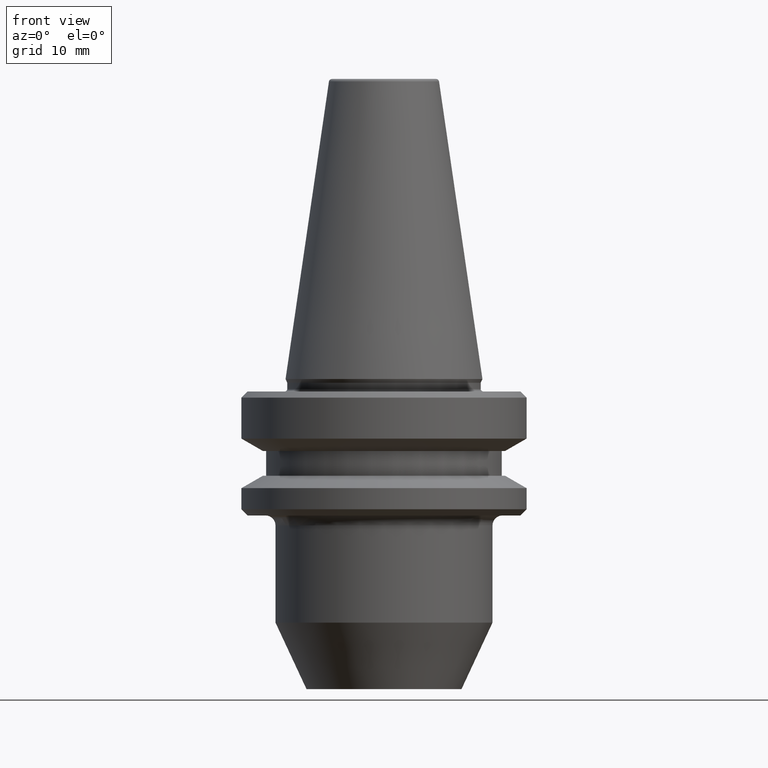
[diagram: clean part render]
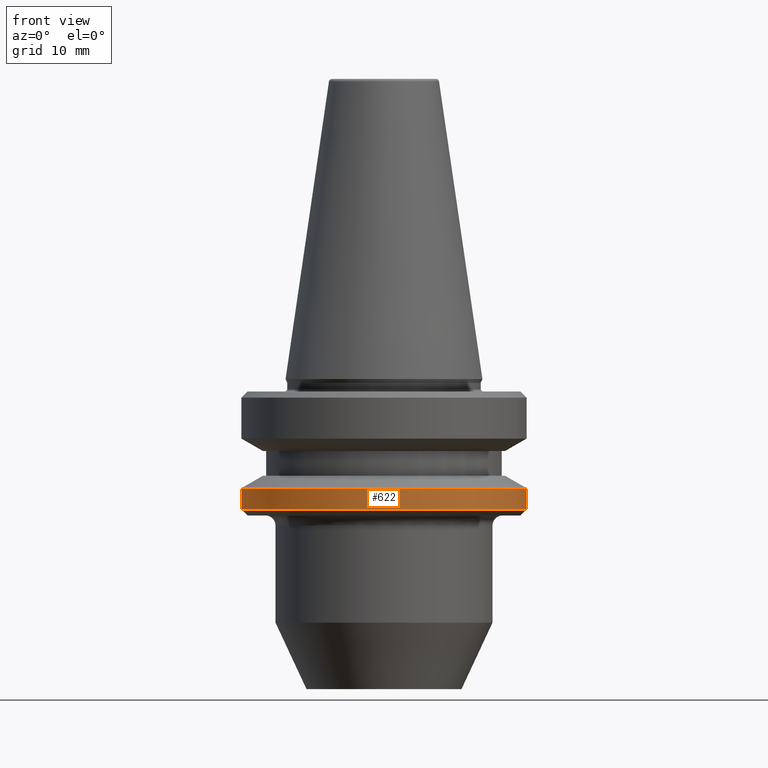
[diagram: same view with one face highlighted and labeled with its STEP entity id]
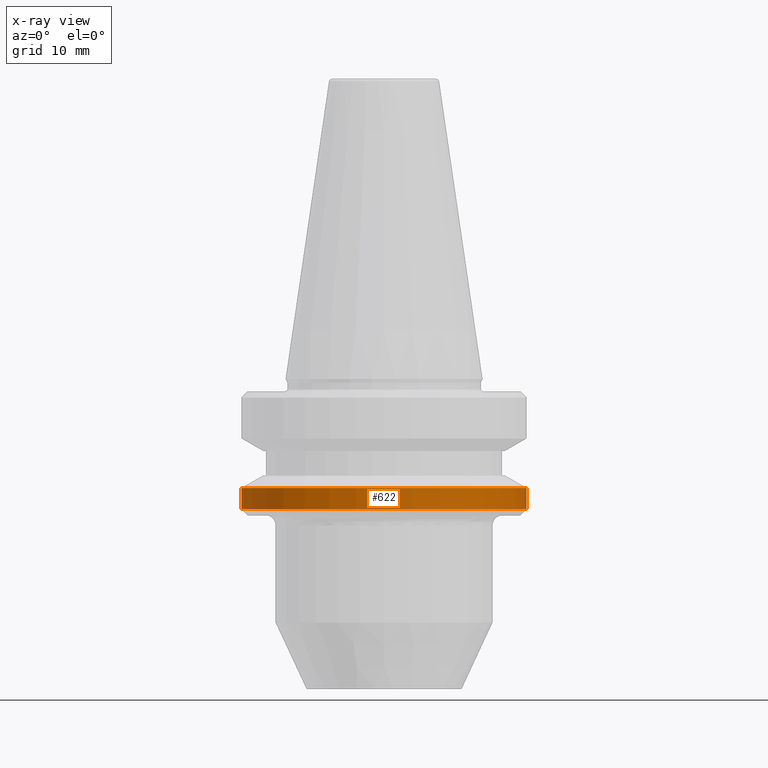
[diagram: x-ray of the same camera — body ghosted, the highlighted face saturated]
A machine part, front view. The second image highlights one B-rep face of the part: STEP entity #622.
The next image is the same camera in x-ray: the body ghosted, the highlighted face saturated — about 0% of this face is hidden behind the body in this view.
In plain terms, the highlighted cylindrical surface (partial cylindrical patch) has radius 23 mm, axis along (-0, -0, 1).
Its self-contained STEP definition (entity closure, byte-faithful):
#41 = CARTESIAN_POINT ( 'NONE',  ( -23.00000000000002100, 2.816687638038915100E-015, -17.59988266494549700 ) ) ;
#105 = CIRCLE ( 'NONE', #310, 23.00000000000002100 ) ;
#164 = DIRECTION ( 'NONE',  ( -0.0000000000000000000, -0.0000000000000000000, 1.000000000000000000 ) ) ;
#210 = ORIENTED_EDGE ( 'NONE', *, *, #859, .T. ) ;
#211 = ORIENTED_EDGE ( 'NONE', *, *, #365, .F. ) ;
#244 = LINE ( 'NONE', #512, #628 ) ;
#255 = CARTESIAN_POINT ( 'NONE',  ( 0.0000000000000000000, 0.0000000000000000000, 106.7296997704041000 ) ) ;
#272 = CIRCLE ( 'NONE', #915, 23.00000000000002100 ) ;
#281 = DIRECTION ( 'NONE',  ( -0.0000000000000000000, -0.0000000000000000000, 1.000000000000000000 ) ) ;
#287 = AXIS2_PLACEMENT_3D ( 'NONE', #255, #994, #438 ) ;
#289 = CARTESIAN_POINT ( 'NONE',  ( 23.00000000000002100, 0.0000000000000000000, 106.7296997704041000 ) ) ;
#296 = CARTESIAN_POINT ( 'NONE',  ( -23.00000000000002100, 2.816687638038915100E-015, -20.99999999999989300 ) ) ;
#309 = VERTEX_POINT ( 'NONE', #41 ) ;
#310 = AXIS2_PLACEMENT_3D ( 'NONE', #1001, #281, #456 ) ;
#337 = CARTESIAN_POINT ( 'NONE',  ( 0.0000000000000000000, 0.0000000000000000000, -20.99999999999989300 ) ) ;
#365 = EDGE_CURVE ( 'NONE', #902, #309, #244, .T. ) ;
#370 = CARTESIAN_POINT ( 'NONE',  ( 23.00000000000002100, 0.0000000000000000000, -17.59988266494549700 ) ) ;
#391 = FACE_OUTER_BOUND ( 'NONE', #850, .T. ) ;
#426 = VERTEX_POINT ( 'NONE', #370 ) ;
#430 = ORIENTED_EDGE ( 'NONE', *, *, #547, .F. ) ;
#438 = DIRECTION ( 'NONE',  ( 1.000000000000000000, 0.0000000000000000000, 0.0000000000000000000 ) ) ;
#451 = DIRECTION ( 'NONE',  ( -0.0000000000000000000, -0.0000000000000000000, 1.000000000000000000 ) ) ;
#456 = DIRECTION ( 'NONE',  ( 1.000000000000000000, 0.0000000000000000000, 0.0000000000000000000 ) ) ;
#512 = CARTESIAN_POINT ( 'NONE',  ( -23.00000000000002100, 2.816687638038915100E-015, 106.7296997704041000 ) ) ;
#547 = EDGE_CURVE ( 'NONE', #309, #426, #105, .T. ) ;
#574 = CARTESIAN_POINT ( 'NONE',  ( 23.00000000000002100, 0.0000000000000000000, -20.99999999999989300 ) ) ;
#604 = ORIENTED_EDGE ( 'NONE', *, *, #997, .T. ) ;
#622 = ADVANCED_FACE ( 'NONE', ( #391 ), #780, .T. ) ;
#628 = VECTOR ( 'NONE', #673, 1000.000000000000000 ) ;
#673 = DIRECTION ( 'NONE',  ( -0.0000000000000000000, -0.0000000000000000000, 1.000000000000000000 ) ) ;
#780 = CYLINDRICAL_SURFACE ( 'NONE', #287, 23.00000000000002100 ) ;
#794 = DIRECTION ( 'NONE',  ( 1.000000000000000000, 0.0000000000000000000, 0.0000000000000000000 ) ) ;
#850 = EDGE_LOOP ( 'NONE', ( #211, #604, #210, #430 ) ) ;
#859 = EDGE_CURVE ( 'NONE', #905, #426, #903, .T. ) ;
#902 = VERTEX_POINT ( 'NONE', #296 ) ;
#903 = LINE ( 'NONE', #289, #992 ) ;
#905 = VERTEX_POINT ( 'NONE', #574 ) ;
#915 = AXIS2_PLACEMENT_3D ( 'NONE', #337, #451, #794 ) ;
#992 = VECTOR ( 'NONE', #164, 1000.000000000000000 ) ;
#994 = DIRECTION ( 'NONE',  ( -0.0000000000000000000, -0.0000000000000000000, 1.000000000000000000 ) ) ;
#997 = EDGE_CURVE ( 'NONE', #902, #905, #272, .T. ) ;
#1001 = CARTESIAN_POINT ( 'NONE',  ( 0.0000000000000000000, 0.0000000000000000000, -17.59988266494549700 ) ) ;